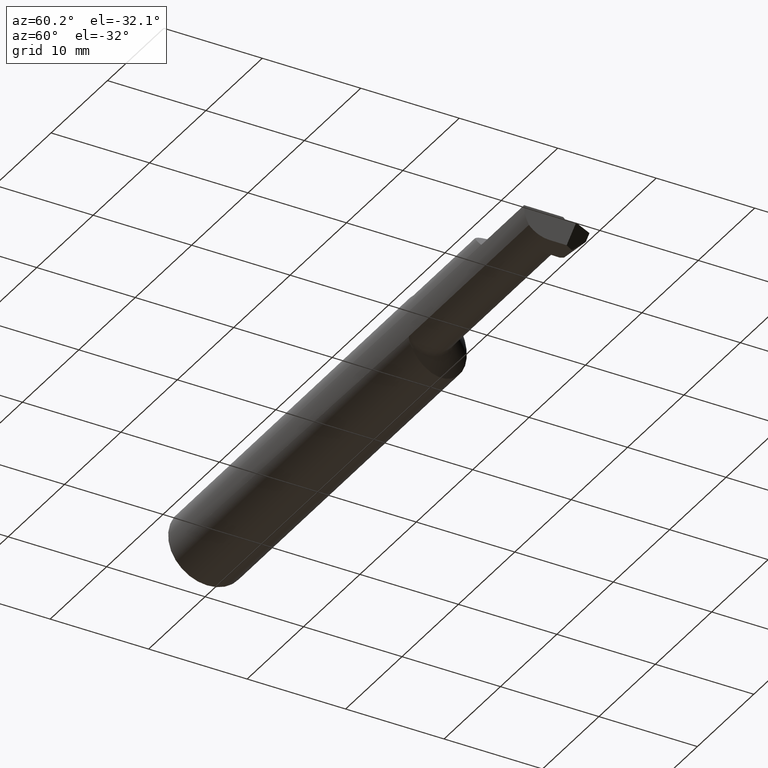
[diagram: clean part render]
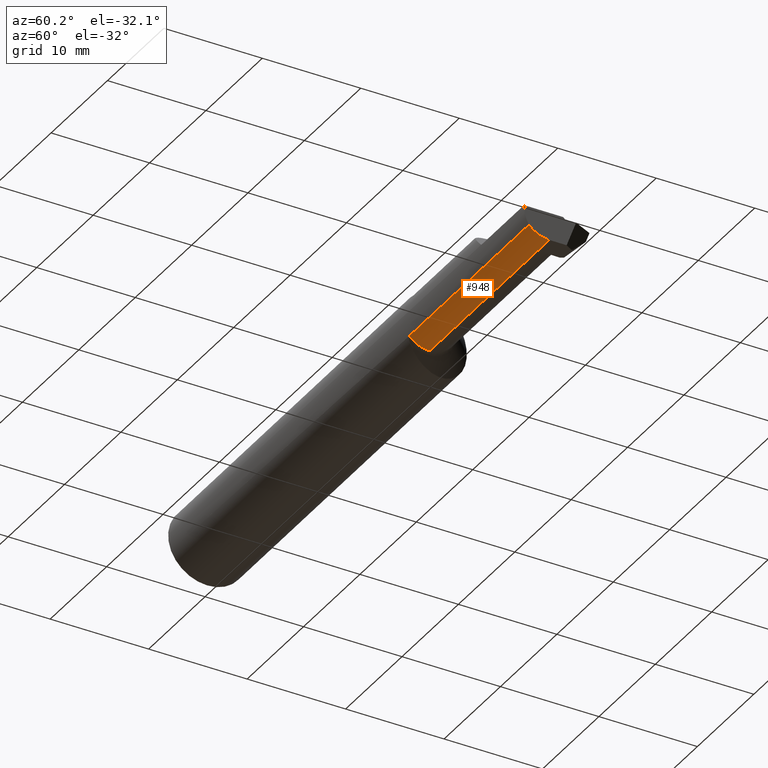
[diagram: same view with one face highlighted and labeled with its STEP entity id]
A machine part, auxiliary view. The second image highlights one B-rep face of the part: STEP entity #948.
In plain terms, the highlighted cylindrical surface (edge-blend (fillet) strip) has radius 2.8194 mm, axis along (-1, -0, -0).
Its self-contained STEP definition (entity closure, byte-faithful):
#67 = CARTESIAN_POINT ( 'NONE',  ( 2.500000000000000000, -0.05509999999999984355, -0.1109999999999999737 ) ) ;
#75 = AXIS2_PLACEMENT_3D ( 'NONE', #423, #678, #255 ) ;
#157 = DIRECTION ( 'NONE',  ( -1.000000000000000000, -0.000000000000000000, -0.000000000000000000 ) ) ;
#173 = VECTOR ( 'NONE', #755, 39.37007874015748143 ) ;
#243 = VERTEX_POINT ( 'NONE', #554 ) ;
#250 = LINE ( 'NONE', #578, #910 ) ;
#255 = DIRECTION ( 'NONE',  ( 0.000000000000000000, 0.000000000000000000, 1.000000000000000000 ) ) ;
#308 = VERTEX_POINT ( 'NONE', #517 ) ;
#323 = VECTOR ( 'NONE', #157, 39.37007874015748143 ) ;
#325 = AXIS2_PLACEMENT_3D ( 'NONE', #422, #968, #500 ) ;
#379 = EDGE_LOOP ( 'NONE', ( #520, #602, #556, #1010, #634 ) ) ;
#386 = CARTESIAN_POINT ( 'NONE',  ( 2.500000000000000000, -0.05509999999999984355, -0.1109999999999999737 ) ) ;
#418 = DIRECTION ( 'NONE',  ( 1.000000000000000000, 0.000000000000000000, 0.000000000000000000 ) ) ;
#422 = CARTESIAN_POINT ( 'NONE',  ( 1.655000000000000249, -0.05509999999999982967, 0.000000000000000000 ) ) ;
#423 = CARTESIAN_POINT ( 'NONE',  ( 2.500000000000000000, -0.05509999999999982967, 0.000000000000000000 ) ) ;
#462 = CIRCLE ( 'NONE', #75, 0.1109999999999999876 ) ;
#471 = VERTEX_POINT ( 'NONE', #689 ) ;
#496 = DIRECTION ( 'NONE',  ( -1.000000000000000000, -0.000000000000000000, -0.000000000000000000 ) ) ;
#499 = VERTEX_POINT ( 'NONE', #1045 ) ;
#500 = DIRECTION ( 'NONE',  ( 0.000000000000000000, 0.000000000000000000, 1.000000000000000000 ) ) ;
#501 = CARTESIAN_POINT ( 'NONE',  ( 1.655000000000000249, -0.05509999999999980885, -0.1110000000000000292 ) ) ;
#517 = CARTESIAN_POINT ( 'NONE',  ( 2.500000000000000000, -0.1368622504537206075, -0.07507286061382667519 ) ) ;
#520 = ORIENTED_EDGE ( 'NONE', *, *, #670, .F. ) ;
#522 = EDGE_CURVE ( 'NONE', #776, #499, #655, .T. ) ;
#554 = CARTESIAN_POINT ( 'NONE',  ( 1.665355339059327200, -0.05509999999999980885, -0.1110000000000000292 ) ) ;
#556 = ORIENTED_EDGE ( 'NONE', *, *, #724, .F. ) ;
#576 = CYLINDRICAL_SURFACE ( 'NONE', #325, 0.1110000000000000292 ) ;
#578 = CARTESIAN_POINT ( 'NONE',  ( 2.028999999999999915, -0.1368622504537206630, -0.07507286061382655029 ) ) ;
#581 = FACE_OUTER_BOUND ( 'NONE', #379, .T. ) ;
#588 = CARTESIAN_POINT ( 'NONE',  ( 1.665355339059327200, -0.05509999999999982967, 0.000000000000000000 ) ) ;
#602 = ORIENTED_EDGE ( 'NONE', *, *, #522, .F. ) ;
#634 = ORIENTED_EDGE ( 'NONE', *, *, #717, .T. ) ;
#653 = CIRCLE ( 'NONE', #671, 0.1110000000000000292 ) ;
#655 = LINE ( 'NONE', #67, #323 ) ;
#670 = EDGE_CURVE ( 'NONE', #499, #243, #840, .T. ) ;
#671 = AXIS2_PLACEMENT_3D ( 'NONE', #588, #418, #939 ) ;
#678 = DIRECTION ( 'NONE',  ( 1.000000000000000000, -0.000000000000000000, -0.000000000000000000 ) ) ;
#689 = CARTESIAN_POINT ( 'NONE',  ( 1.665355339059327200, -0.1368622504537206630, -0.07507286061382655029 ) ) ;
#717 = EDGE_CURVE ( 'NONE', #471, #243, #653, .T. ) ;
#724 = EDGE_CURVE ( 'NONE', #308, #776, #462, .T. ) ;
#755 = DIRECTION ( 'NONE',  ( -1.000000000000000000, -0.000000000000000000, -0.000000000000000000 ) ) ;
#768 = EDGE_CURVE ( 'NONE', #308, #471, #250, .T. ) ;
#776 = VERTEX_POINT ( 'NONE', #386 ) ;
#840 = LINE ( 'NONE', #501, #173 ) ;
#910 = VECTOR ( 'NONE', #496, 39.37007874015748143 ) ;
#939 = DIRECTION ( 'NONE',  ( 0.000000000000000000, 1.768933104005575319E-15, 1.000000000000000000 ) ) ;
#948 = ADVANCED_FACE ( 'NONE', ( #581 ), #576, .T. ) ;
#968 = DIRECTION ( 'NONE',  ( -1.000000000000000000, -0.000000000000000000, -0.000000000000000000 ) ) ;
#1010 = ORIENTED_EDGE ( 'NONE', *, *, #768, .T. ) ;
#1045 = CARTESIAN_POINT ( 'NONE',  ( 2.419640730573871856, -0.05509999999999984355, -0.1109999999999999737 ) ) ;